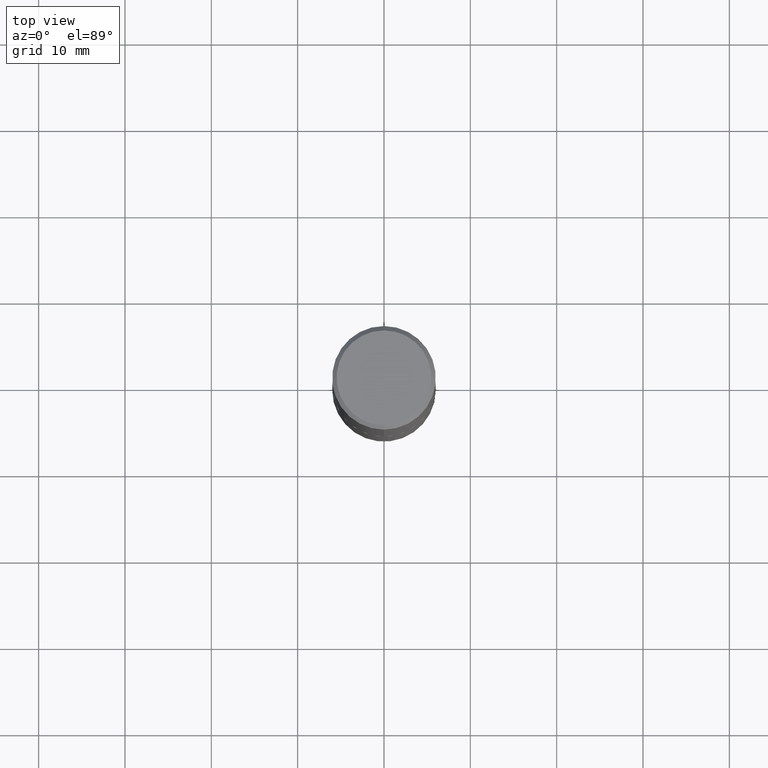
[diagram: clean part render]
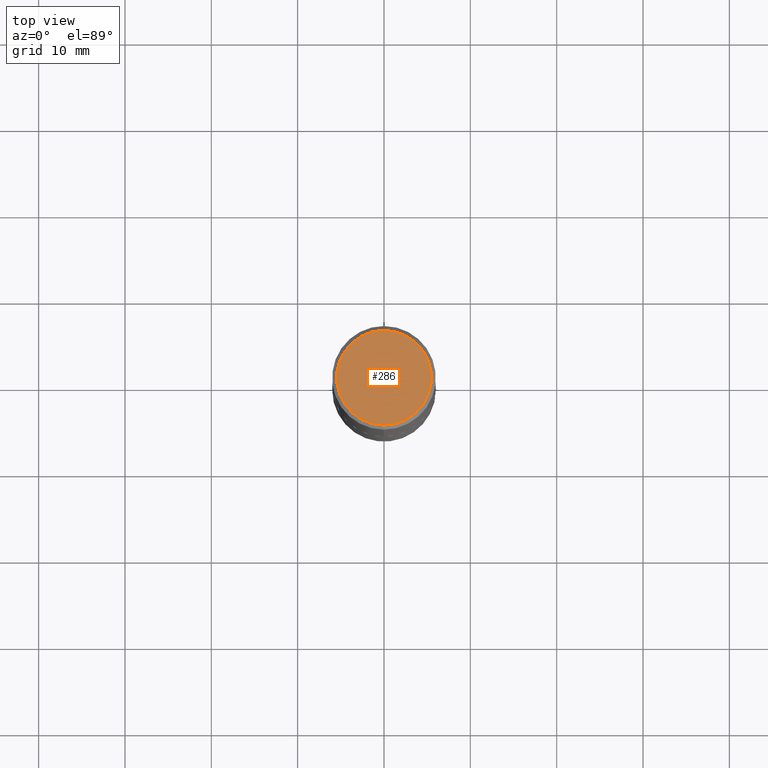
[diagram: same view with one face highlighted and labeled with its STEP entity id]
A machine part, top view. The second image highlights one B-rep face of the part: STEP entity #286.
In plain terms, the highlighted planar face has unit normal (0, -0, -1).
Its self-contained STEP definition (entity closure, byte-faithful):
#3 = DIRECTION ( 'NONE',  ( -6.982962677686265922E-15, -1.000000000000000000, 3.491620077334691152E-15 ) ) ;
#25 = ORIENTED_EDGE ( 'NONE', *, *, #58, .T. ) ;
#36 = CARTESIAN_POINT ( 'NONE',  ( -8.038070963430480451E-45, 1.147714573189292330E-30, 3.287054569996039822E-16 ) ) ;
#47 = CARTESIAN_POINT ( 'NONE',  ( -1.551844647095918761E-15, -0.2161999999999996425, 1.083593717719362934E-15 ) ) ;
#53 = AXIS2_PLACEMENT_3D ( 'NONE', #307, #136, #257 ) ;
#55 = DIRECTION ( 'NONE',  ( -2.445371925614294233E-29, 3.491620077334691546E-15, 1.000000000000000000 ) ) ;
#58 = EDGE_CURVE ( 'NONE', #61, #190, #134, .T. ) ;
#61 = VERTEX_POINT ( 'NONE', #409 ) ;
#118 = AXIS2_PLACEMENT_3D ( 'NONE', #213, #55, #180 ) ;
#134 = CIRCLE ( 'NONE', #118, 0.2161999999999996425 ) ;
#136 = DIRECTION ( 'NONE',  ( 2.445371925614293953E-29, -3.491620077334691546E-15, -1.000000000000000000 ) ) ;
#157 = FACE_OUTER_BOUND ( 'NONE', #306, .T. ) ;
#177 = AXIS2_PLACEMENT_3D ( 'NONE', #36, #191, #3 ) ;
#180 = DIRECTION ( 'NONE',  ( -6.982962677686265922E-15, -1.000000000000000000, 3.491620077334691152E-15 ) ) ;
#190 = VERTEX_POINT ( 'NONE', #47 ) ;
#191 = DIRECTION ( 'NONE',  ( -2.445371925614294233E-29, 3.491620077334691546E-15, 1.000000000000000000 ) ) ;
#213 = CARTESIAN_POINT ( 'NONE',  ( -8.038070963430480451E-45, 1.147714573189292330E-30, 3.287054569996039822E-16 ) ) ;
#228 = CIRCLE ( 'NONE', #177, 0.2161999999999996425 ) ;
#238 = EDGE_CURVE ( 'NONE', #190, #61, #228, .T. ) ;
#257 = DIRECTION ( 'NONE',  ( 6.982962677686265922E-15, 1.000000000000000000, -3.491620077334691546E-15 ) ) ;
#286 = ADVANCED_FACE ( 'NONE', ( #157 ), #310, .F. ) ;
#306 = EDGE_LOOP ( 'NONE', ( #25, #383 ) ) ;
#307 = CARTESIAN_POINT ( 'NONE',  ( 1.509716530915768154E-15, 0.2161999999999996425, -5.905355322199570835E-16 ) ) ;
#310 = PLANE ( 'NONE',  #53 ) ;
#383 = ORIENTED_EDGE ( 'NONE', *, *, #238, .T. ) ;
#409 = CARTESIAN_POINT ( 'NONE',  ( 1.579546157692632438E-15, 0.2161999999999996425, -4.261828037201549199E-16 ) ) ;